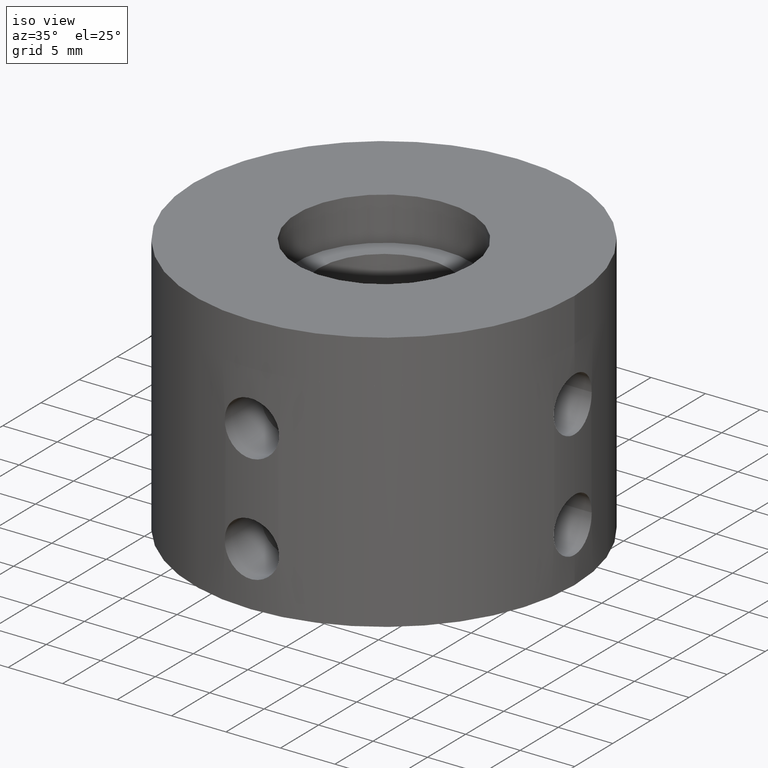
[diagram: clean part render]
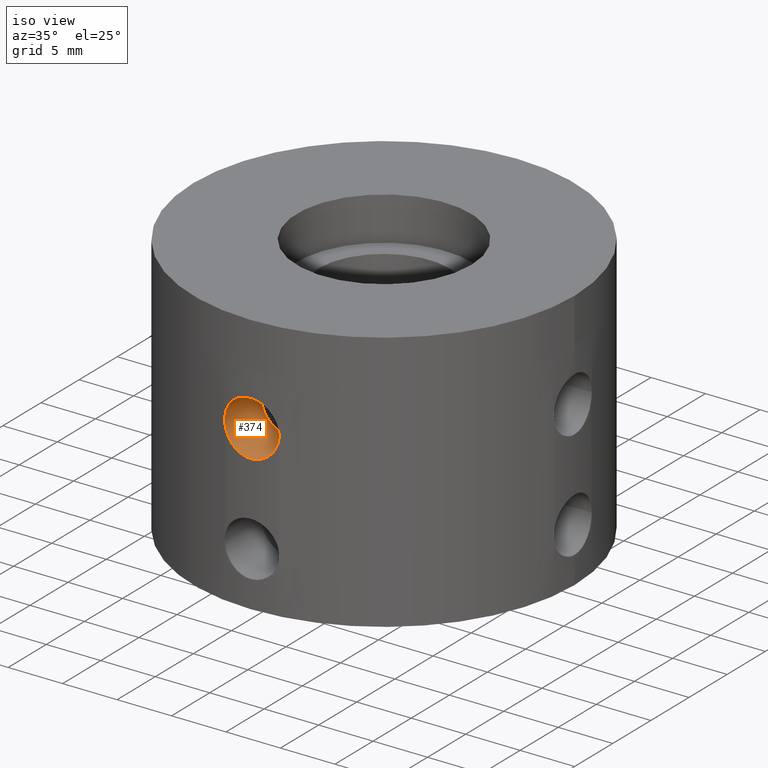
[diagram: same view with one face highlighted and labeled with its STEP entity id]
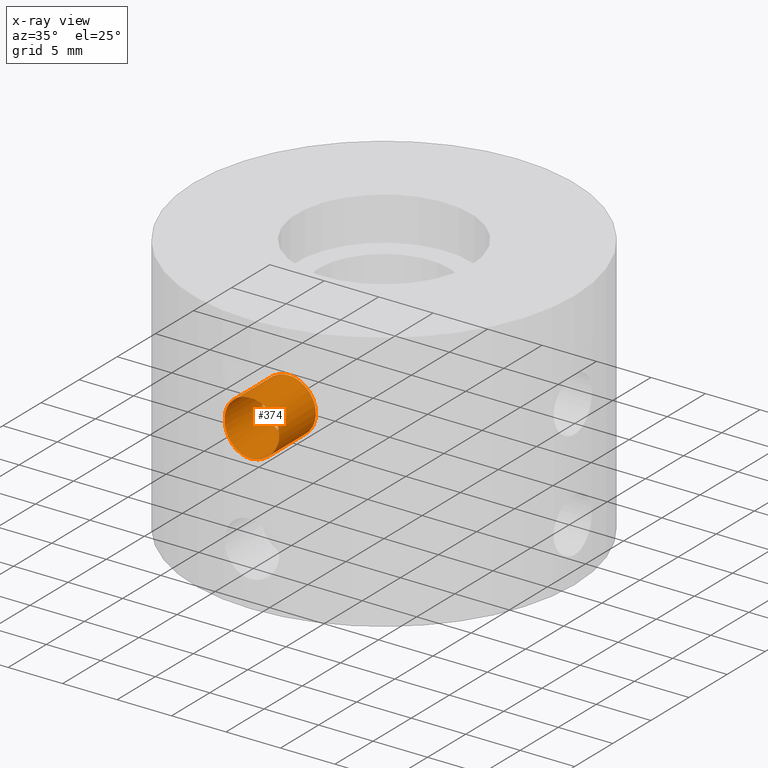
[diagram: x-ray of the same camera — body ghosted, the highlighted face saturated]
A machine part, iso view. The second image highlights one B-rep face of the part: STEP entity #374.
The next image is the same camera in x-ray: the body ghosted, the highlighted face saturated — about 0% of this face is hidden behind the body in this view.
In plain terms, the highlighted cylindrical surface (bore or boss wall) has radius 2.5 mm, axis along (-0, 1, -0).
Its self-contained STEP definition (entity closure, byte-faithful):
#374 = ADVANCED_FACE( '', ( #483, #484 ), #485, .F. );
#483 = FACE_OUTER_BOUND( '', #655, .T. );
#484 = FACE_OUTER_BOUND( '', #656, .T. );
#485 = CYLINDRICAL_SURFACE( '', #657, 2.50000000000000 );
#655 = EDGE_LOOP( '', ( #857 ) );
#656 = EDGE_LOOP( '', ( #858 ) );
#657 = AXIS2_PLACEMENT_3D( '', #859, #860, #861 );
#857 = ORIENTED_EDGE( '', *, *, #1205, .T. );
#858 = ORIENTED_EDGE( '', *, *, #1188, .T. );
#859 = CARTESIAN_POINT( '', ( 0.000000000000000, -17.5000000000000, -19.0000000000000 ) );
#860 = DIRECTION( '', ( -0.000000000000000, 1.00000000000000, -0.000000000000000 ) );
#861 = DIRECTION( '', ( 1.00000000000000, 0.000000000000000, 0.000000000000000 ) );
#1188 = EDGE_CURVE( '', #1302, #1302, #1303, .T. );
#1205 = EDGE_CURVE( '', #1336, #1336, #1337, .T. );
#1302 = VERTEX_POINT( '', #1620 );
#1303 = B_SPLINE_CURVE_WITH_KNOTS( '', 3, ( #1621, #1622, #1623, #1624, #1625, #1626, #1627, #1628, #1629, #1630, #1631, #1632, #1633, #1634, #1635, #1636, #1637, #1638, #1639, #1640, #1641, #1642, #1643, #1644, #1645, #1646, #1647, #1648, #1649, #1650, #1651, #1652, #1653, #1654, #1655, #1656, #1657, #1658, #1659, #1660, #1661, #1662, #1663, #1664, #1665, #1666, #1667, #1668, #1669, #1670, #1671, #1672, #1673, #1674, #1675, #1676, #1677, #1678, #1679, #1680, #1681, #1682, #1683, #1684 ), .UNSPECIFIED., .T., .F., ( 2, 2, 2, 2, 2, 2, 2, 2, 2, 2, 2, 2, 2, 2, 2, 2, 2, 2, 2, 2, 2, 2, 2, 2, 2, 2, 2, 2, 2, 2, 2, 2, 2, 2 ), ( -0.000489074391735320, 0.000000000000000, 0.000489074391735320, 0.000978148783470640, 0.00146722317520596, 0.00195629756694128, 0.00244537195867660, 0.00293444635041192, 0.00342352074214724, 0.00391259513388256, 0.00440166952561788, 0.00489074391735320, 0.00537981830908852, 0.00586889270082384, 0.00635796709255916, 0.00684704148429448, 0.00733611587602980, 0.00782519026776512, 0.00831426465950044, 0.00880333905123576, 0.00929241344297108, 0.00978148783470640, 0.0102705622264417, 0.0107596366181770, 0.0112487110099124, 0.0117377854016477, 0.0122268597933830, 0.0127159341851183, 0.0132050085768536, 0.0136940829685890, 0.0146722317520596, 0.0151613061437949, 0.0156503805355302, 0.0161394549272656 ), .UNSPECIFIED. );
#1336 = VERTEX_POINT( '', #1992 );
#1337 = CIRCLE( '', #1993, 2.50000000000000 );
#1620 = CARTESIAN_POINT( '', ( 2.50000000000000, -17.3205080756888, -19.0000000000000 ) );
#1621 = CARTESIAN_POINT( '', ( 2.50000000000000, -17.3205080756888, -19.1653887530028 ) );
#1622 = CARTESIAN_POINT( '', ( 2.50000000000000, -17.3205080756888, -18.8346112469971 ) );
#1623 = CARTESIAN_POINT( '', ( 2.48375005439057, -17.3228755735567, -18.6720291116467 ) );
#1624 = CARTESIAN_POINT( '', ( 2.42011983415809, -17.3318796573807, -18.3522352088859 ) );
#1625 = CARTESIAN_POINT( '', ( 2.37195188220817, -17.3386232166662, -18.1933502748283 ) );
#1626 = CARTESIAN_POINT( '', ( 2.24639795610236, -17.3553365569166, -17.8907048483610 ) );
#1627 = CARTESIAN_POINT( '', ( 2.16959767322640, -17.3652293728603, -17.7471975144319 ) );
#1628 = CARTESIAN_POINT( '', ( 1.98818689140878, -17.3869335456414, -17.4756047046959 ) );
#1629 = CARTESIAN_POINT( '', ( 1.88273700484889, -17.3988131925760, -17.3471780258212 ) );
#1630 = CARTESIAN_POINT( '', ( 1.65241163963692, -17.4221966156043, -17.1169028487759 ) );
#1631 = CARTESIAN_POINT( '', ( 1.52669622257394, -17.4338170326531, -17.0134933070715 ) );
#1632 = CARTESIAN_POINT( '', ( 1.25349885123339, -17.4555870228991, -16.8307257372504 ) );
#1633 = CARTESIAN_POINT( '', ( 1.10830857915623, -17.4655182767391, -16.7531908110721 ) );
#1634 = CARTESIAN_POINT( '', ( 0.807585234298986, -17.4820045381267, -16.6284381670670 ) );
#1635 = CARTESIAN_POINT( '', ( 0.649822633085166, -17.4886763560253, -16.5803276802069 ) );
#1636 = CARTESIAN_POINT( '', ( 0.327023422269617, -17.4976891566160, -16.5160234963008 ) );
#1637 = CARTESIAN_POINT( '', ( 0.164677534772311, -17.4999868203029, -16.5000922578938 ) );
#1638 = CARTESIAN_POINT( '', ( -0.161864352663193, -17.5000130666400, -16.4999085335056 ) );
#1639 = CARTESIAN_POINT( '', ( -0.327737723393055, -17.4976665366731, -16.5161856257475 ) );
#1640 = CARTESIAN_POINT( '', ( -0.648525581797024, -17.4887152419410, -16.5800494982680 ) );
#1641 = CARTESIAN_POINT( '', ( -0.804465563497045, -17.4821579416789, -16.6272997505694 ) );
#1642 = CARTESIAN_POINT( '', ( -1.10740105850528, -17.4655854192260, -16.7526606370817 ) );
#1643 = CARTESIAN_POINT( '', ( -1.25349955951706, -17.4555770013346, -16.8308464782993 ) );
#1644 = CARTESIAN_POINT( '', ( -1.52415447594400, -17.4340294461347, -17.0116737491357 ) );
#1645 = CARTESIAN_POINT( '', ( -1.65059013684919, -17.4223787060199, -17.1151369751399 ) );
#1646 = CARTESIAN_POINT( '', ( -1.88372181932628, -17.3987160354789, -17.3481075913539 ) );
#1647 = CARTESIAN_POINT( '', ( -1.98701142548394, -17.3870669816768, -17.4741321047775 ) );
#1648 = CARTESIAN_POINT( '', ( -2.16806915326313, -17.3654193377813, -17.7446261969663 ) );
#1649 = CARTESIAN_POINT( '', ( -2.24646905758116, -17.3553272354625, -17.8908588641385 ) );
#1650 = CARTESIAN_POINT( '', ( -2.37195868793999, -17.3386221672705, -18.1933840637356 ) );
#1651 = CARTESIAN_POINT( '', ( -2.41934185317208, -17.3319887773045, -18.3492046382361 ) );
#1652 = CARTESIAN_POINT( '', ( -2.48350961982411, -17.3229105506944, -18.6699551944893 ) );
#1653 = CARTESIAN_POINT( '', ( -2.49993744371716, -17.3205171049098, -18.8357919977070 ) );
#1654 = CARTESIAN_POINT( '', ( -2.50006219134147, -17.3204990991425, -19.1622976584583 ) );
#1655 = CARTESIAN_POINT( '', ( -2.48428818139188, -17.3227988081478, -19.3246993890653 ) );
#1656 = CARTESIAN_POINT( '', ( -2.42023288897565, -17.3318642701497, -19.6477578440925 ) );
#1657 = CARTESIAN_POINT( '', ( -2.37231553470365, -17.3385715935937, -19.8053823074157 ) );
#1658 = CARTESIAN_POINT( '', ( -2.24778206833119, -17.3551554782911, -20.1063441736563 ) );
#1659 = CARTESIAN_POINT( '', ( -2.17013755315986, -17.3651643350834, -20.2519763867538 ) );
#1660 = CARTESIAN_POINT( '', ( -1.98781455164966, -17.3869785383297, -20.5249705508217 ) );
#1661 = CARTESIAN_POINT( '', ( -1.88455980893661, -17.3986155516757, -20.6507539239646 ) );
#1662 = CARTESIAN_POINT( '', ( -1.65432593641216, -17.4220146505674, -20.8814249618462 ) );
#1663 = CARTESIAN_POINT( '', ( -1.52589889630590, -17.4338789039367, -20.9870199982675 ) );
#1664 = CARTESIAN_POINT( '', ( -1.25472142408134, -17.4554912628326, -21.1684764382427 ) );
#1665 = CARTESIAN_POINT( '', ( -1.11131226557187, -17.4653361941806, -21.2454090618979 ) );
#1666 = CARTESIAN_POINT( '', ( -0.808563706969453, -17.4819680831175, -21.3713079805532 ) );
#1667 = CARTESIAN_POINT( '', ( -0.649900884721678, -17.4886588963650, -21.4195434902369 ) );
#1668 = CARTESIAN_POINT( '', ( -0.330269181233335, -17.4976136493322, -21.4834419922835 ) );
#1669 = CARTESIAN_POINT( '', ( -0.167426063724431, -17.4999794691530, -21.4998562840184 ) );
#1670 = CARTESIAN_POINT( '', ( 0.163106277650214, -17.5000202642677, -21.5001418499261 ) );
#1671 = CARTESIAN_POINT( '', ( 0.325666194006861, -17.4977012606733, -21.4840557735051 ) );
#1672 = CARTESIAN_POINT( '', ( 0.645592170960224, -17.4888198180004, -21.4207028534287 ) );
#1673 = CARTESIAN_POINT( '', ( 0.804646892438289, -17.4821481653381, -21.3726264795809 ) );
#1674 = CARTESIAN_POINT( '', ( 1.10725278250377, -17.4655933873425, -21.2473994546490 ) );
#1675 = CARTESIAN_POINT( '', ( 1.25084286177342, -17.4557724728432, -21.1707352647557 ) );
#1676 = CARTESIAN_POINT( '', ( 1.52275225870540, -17.4341568780119, -20.9894534458266 ) );
#1677 = CARTESIAN_POINT( '', ( 1.65120149566899, -17.4223116379704, -20.8841544612839 ) );
#1678 = CARTESIAN_POINT( '', ( 1.99682143856961, -17.3872465014419, -20.5390652343455 ) );
#1679 = CARTESIAN_POINT( '', ( 2.18331252924779, -17.3637281015119, -20.2606140254605 ) );
#1680 = CARTESIAN_POINT( '', ( 2.37084502506341, -17.3387736205025, -19.8096877160496 ) );
#1681 = CARTESIAN_POINT( '', ( 2.41911909665361, -17.3320203069142, -19.6519221726083 ) );
#1682 = CARTESIAN_POINT( '', ( 2.48374795185065, -17.3228768175138, -19.3288401353396 ) );
#1683 = CARTESIAN_POINT( '', ( 2.50000000000000, -17.3205080756888, -19.1653887530028 ) );
#1684 = CARTESIAN_POINT( '', ( 2.50000000000000, -17.3205080756888, -18.8346112469971 ) );
#1992 = CARTESIAN_POINT( '', ( 2.50000000000000, -12.5000000000000, -19.0000000000000 ) );
#1993 = AXIS2_PLACEMENT_3D( '', #2347, #2348, #2349 );
#2347 = CARTESIAN_POINT( '', ( 0.000000000000000, -12.5000000000000, -19.0000000000000 ) );
#2348 = DIRECTION( '', ( -0.000000000000000, 1.00000000000000, 0.000000000000000 ) );
#2349 = DIRECTION( '', ( 1.00000000000000, 0.000000000000000, 0.000000000000000 ) );